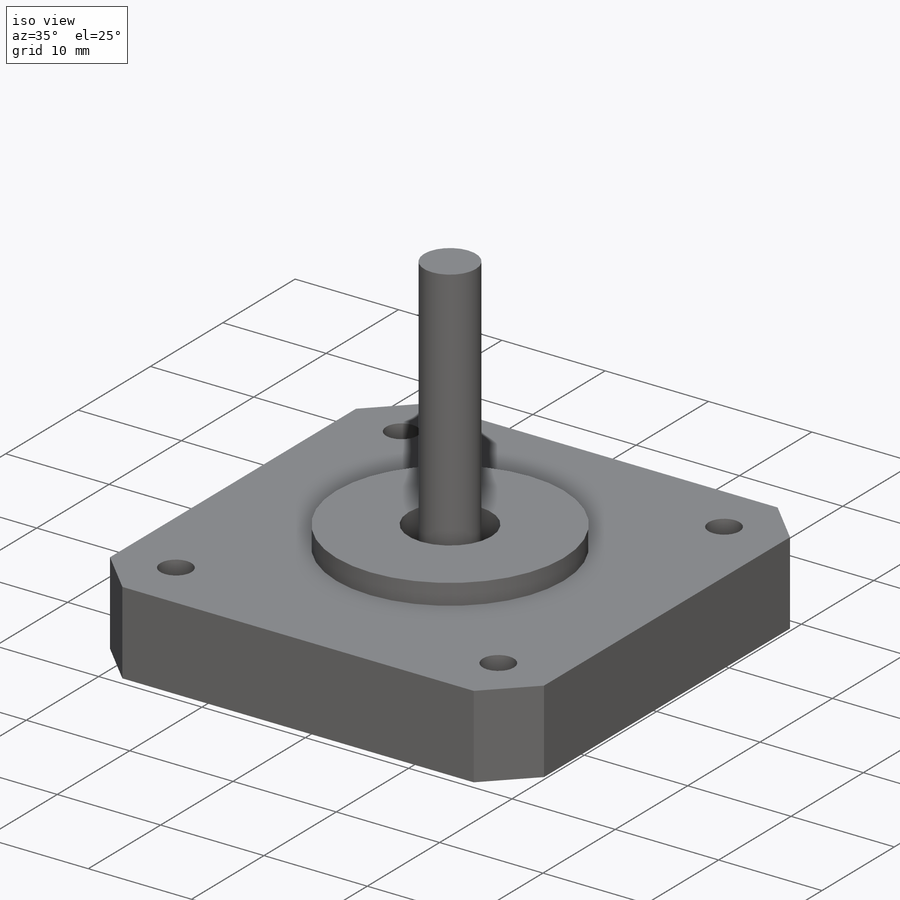
[diagram: iso view]
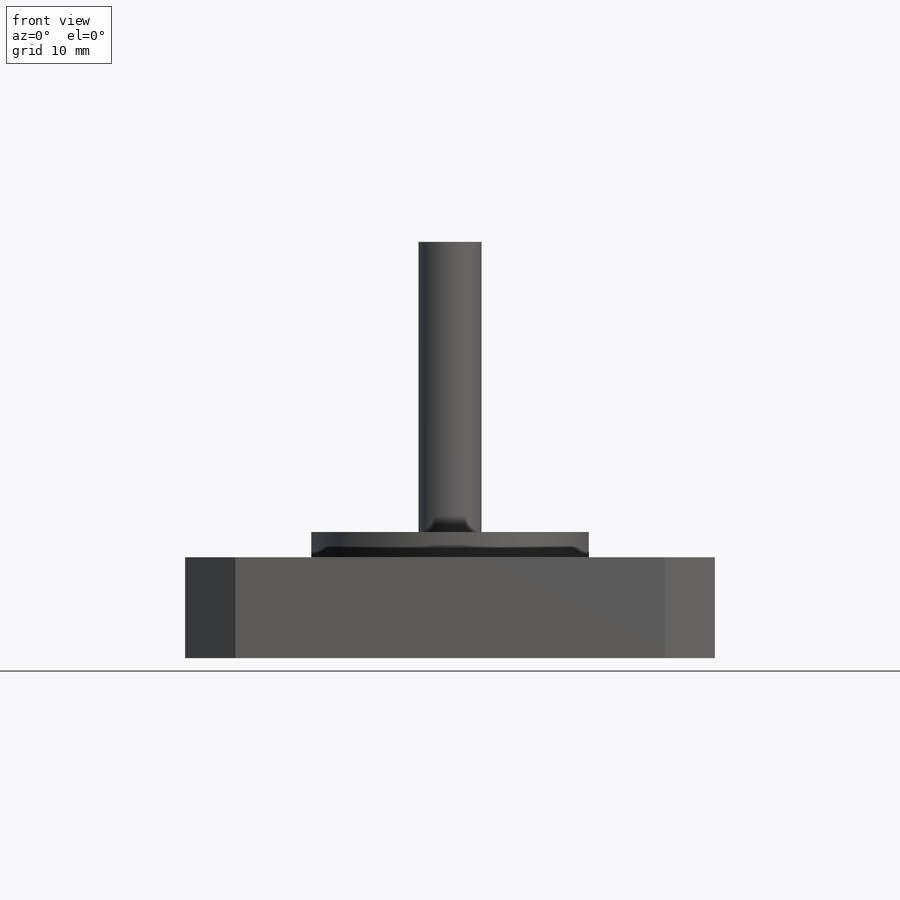
[diagram: front view]
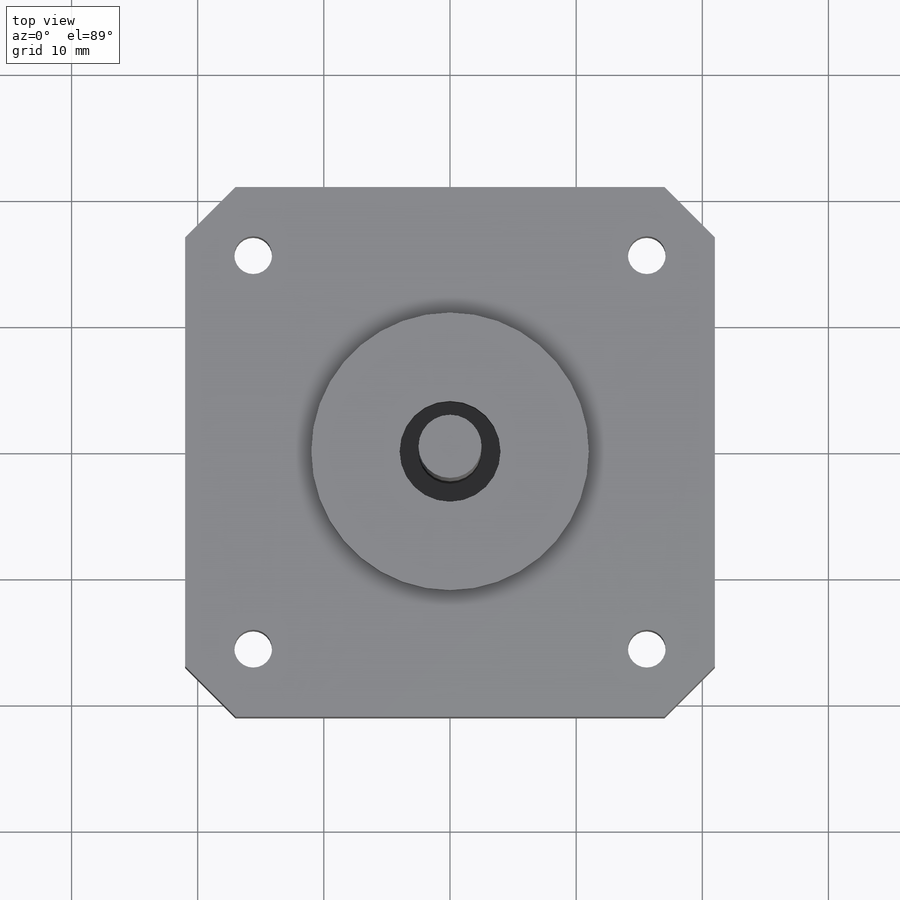
[diagram: top view]
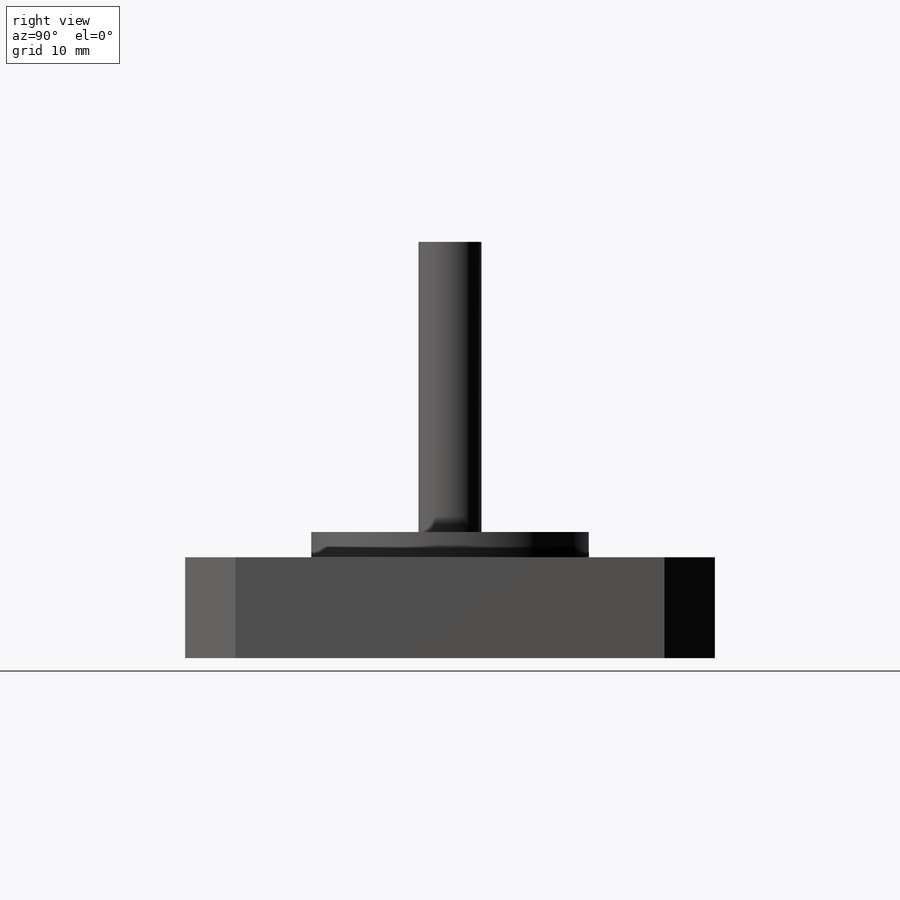
[diagram: right view]
SOLIDWORKS PART (.sldprt)
format: sldprt  version: not decoded by parser v0  size: 223,744 bytes
history: native  units: mm
features: sketch x5, extrude x3, cut_extrude x2, material x1, chamfer x1 (+13 scaffold rows collapsed)
feature tree (25):
  scaffold x13  (default folders/planes/origin — collapsed)
  material  "Material <not specified>"
  sketch  "Sketch1"  dims[D1=42.0mm D2=42.0mm]
  extrude  "Boss-Extrude1"  Depth=8mm
  sketch  "Sketch2"  dims[D1=22.0mm]
  extrude  "Boss-Extrude2"  Depth=2mm
  sketch  "Sketch3"  dims[D1=~5.684184mm]
  cut_extrude  "Cut-Extrude1"  Depth=4mm
  sketch  "Sketch4"  dims[D1=2.0mm]
  extrude  "Boss-Extrude3"  Depth=27mm
  chamfer  "Chamfer1"  Distance=4mm Angle=45deg
  sketch  "Sketch5"  dims[c1.D1=3.0mm c1.D2=3.0mm c1.D3=3.0mm c1.D4=3.0mm c1.D5=3.0mm c1.D6=3.0mm c1.D7=3.0mm c1.D8=3.0mm c2.D1=5.4mm c2.D2=5.4mm c2.D3=5.4mm c2.D4=5.4mm c2.D5=5.4mm c2.D6=5.4mm c2.D7=5.4mm c2.D8=5.4mm]
  cut_extrude  "Cut-Extrude2"  [1 undecoded]
decode coverage: 10 of 11 modeling features carry decoded parameters
note: ~ marks probable driven/reference dimensions
note: 1 parameter value undecoded
note: suppression state not decoded; provenance and decode notes live in map.json
